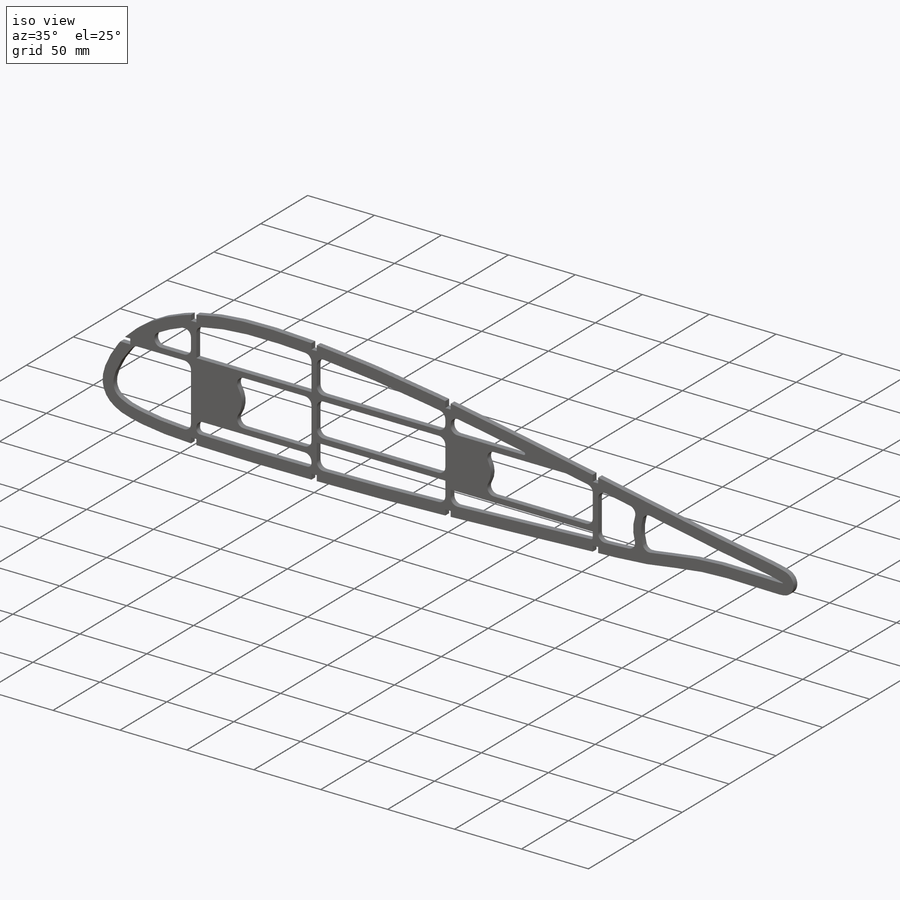
[diagram: iso view]
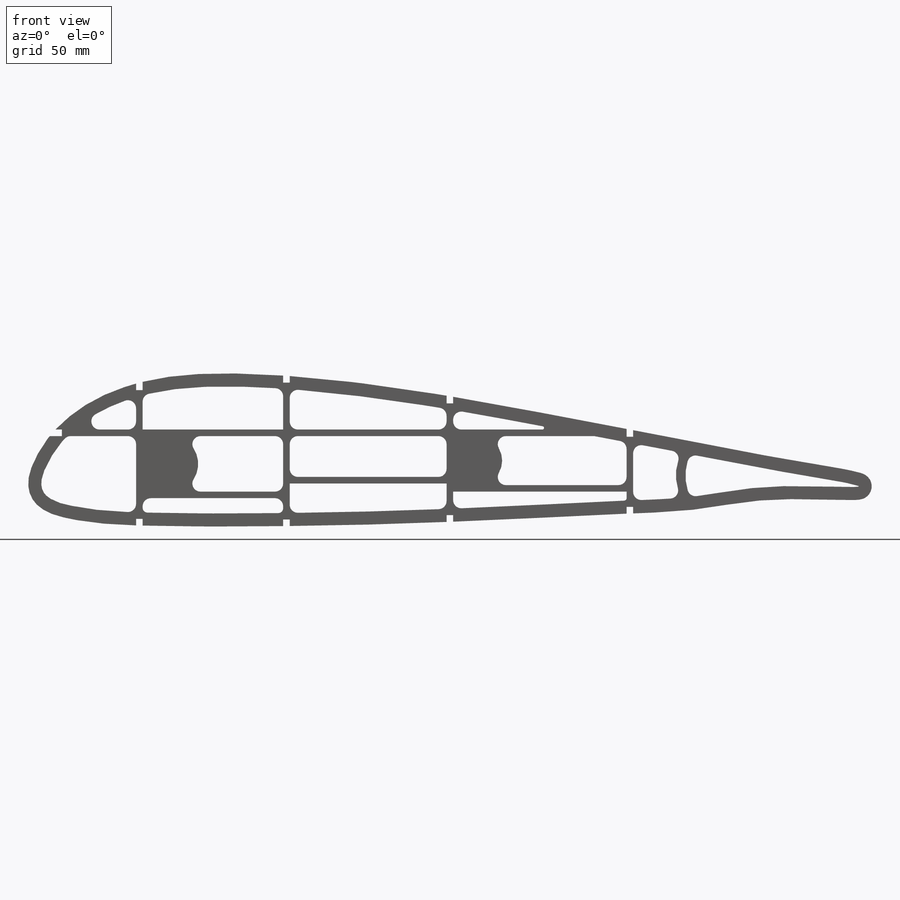
[diagram: front view]
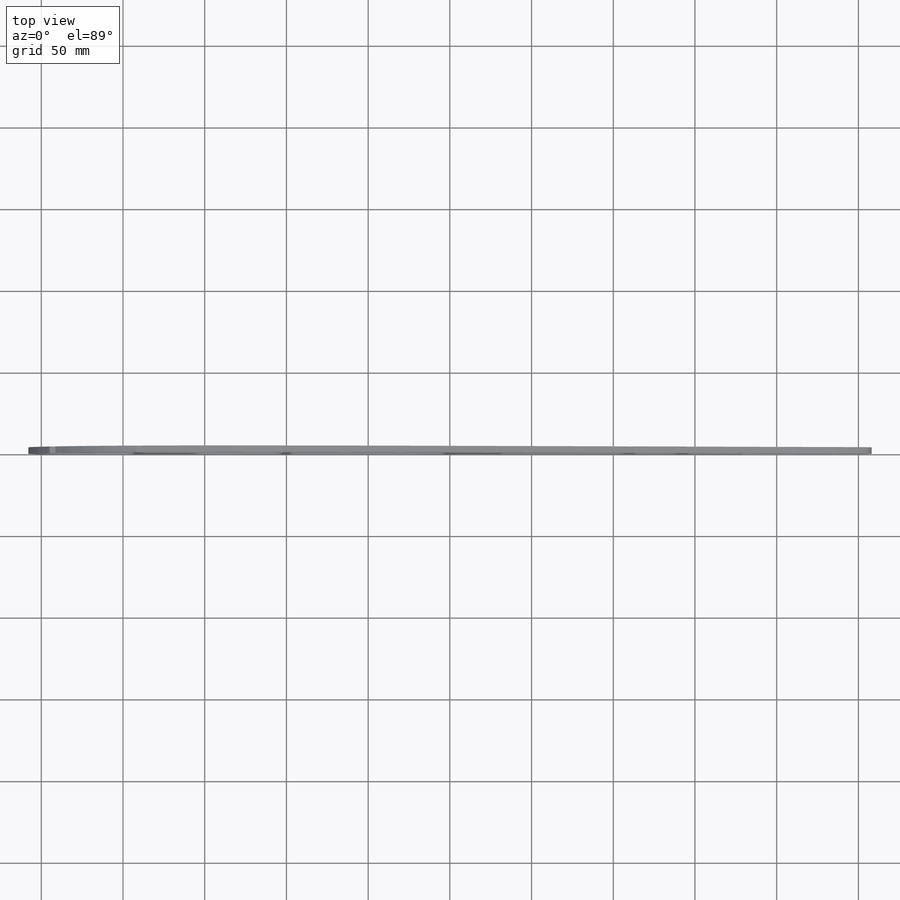
[diagram: top view]
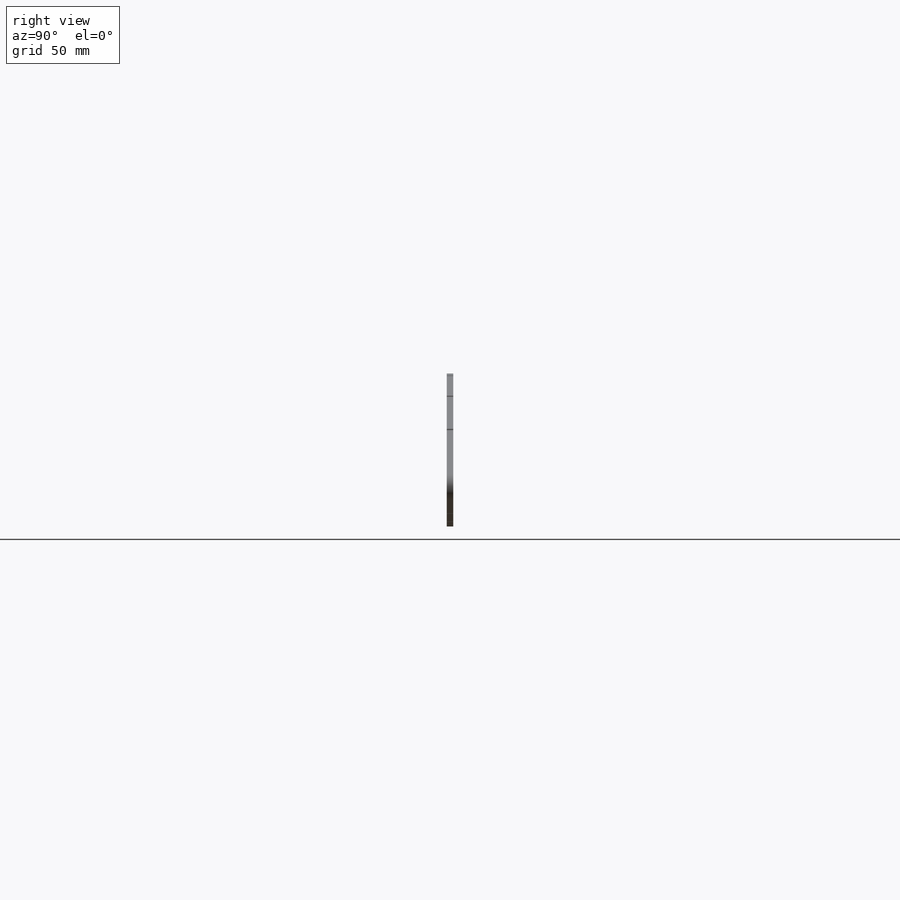
[diagram: right view]
SOLIDWORKS PART (.sldprt)
format: sldprt  version: not decoded by parser v0  size: 715,264 bytes
history: native  units: mm
features: fillet x23, material x1, sketch x1, extrude x1 (+13 scaffold rows collapsed)
feature tree (39):
  scaffold x13  (default folders/planes/origin — collapsed)
  material  "Cedar"
  sketch  "Sketch11"  dims[c1.D3=34.0mm c1.D11=5.0mm c1.D12=5.0mm c1.D13=30.0mm c1.D19=~1038.448062mm c1.D20=~1038.448062mm c1.D35=5.0mm c1.D40=5.0mm c1.D41=5.0mm c1.D44=~43.32506mm c1.D45=~9.067024mm c2.D44=30.0mm c2.D45=30.0mm c2.D1=4.0mm c2.D2=2.0mm c2.D4=2.0mm c2.D5=4.0mm c2.D6=2.0mm c2.D7=4.0mm c2.D8=2.0mm c2.D9=4.0mm c2.D10=2.0mm c2.D14=60.0mm c2.D15=150.0mm c2.D16=250.0mm c2.D17=140.0mm c2.D18=2.0mm c2.D19=79.616mm c3.D9=2.0mm c3.D19=2.0mm c3.D20=4.0mm c3.D21=4.0mm c3.D22=4.0mm c3.D23=4.0mm c3.D24=4.0mm c3.D25=0.1mm c3.D26=0.1mm c3.D27=4.0mm c3.D28=0.1mm c3.D29=4.0mm c3.D30=0.1mm c3.D31=4.0mm c3.D32=~500.144153mm c3.D33=2.0mm c3.D34=~1.650019mm c3.D35=~19.004713mm c4.D34=2.0mm c4.D35=~4.089875mm c4.D36=25.0mm c4.D37=4.0mm c4.D38=4.0mm c4.D39=4.0mm c4.D41=~4.04071mm c4.D42=103.0mm c4.D43=5.0mm c4.D6=4.0mm c4.D25=4.0mm c4.D26=4.0mm c4.D27=4.0mm c4.D28=~3.999963mm c4.D1=5.0mm c4.D18=8.0mm]
  extrude  "Boss-Extrude41"  Depth=4mm
  fillet  "Fillet1"  Radius=5mm
  fillet  "Fillet2"  Radius=5mm
  fillet  "Fillet3"  Radius=5mm
  fillet  "Fillet4"  Radius=5mm
  fillet  "Fillet5"  Radius=5mm
  fillet  "Fillet6"  Radius=5mm
  fillet  "Fillet7"  Radius=5mm
  fillet  "Fillet8"  Radius=5mm
  fillet  "Fillet9"  Radius=3mm
  fillet  "Fillet10"  Radius=3mm
  fillet  "Fillet11"  Radius=5mm
  fillet  "Fillet12"  Radius=5mm
  fillet  "Fillet13"  Radius=5mm
  fillet  "Fillet14"  Radius=1.5mm
  fillet  "Fillet15"  Radius=5mm
  fillet  "Fillet16"  Radius=1mm
  fillet  "Fillet19"  Radius=5mm
  fillet  "Fillet20"  Radius=5mm
  fillet  "Fillet21"  Radius=5mm
  fillet  "Fillet22"  Radius=5mm
  fillet  "Fillet23"  Radius=5mm
  fillet  "Fillet24"  Radius=5mm
  fillet  "Fillet25"  Radius=5mm
decode coverage: 25 of 25 modeling features carry decoded parameters
note: ~ marks probable driven/reference dimensions
note: suppression state not decoded; provenance and decode notes live in map.json
